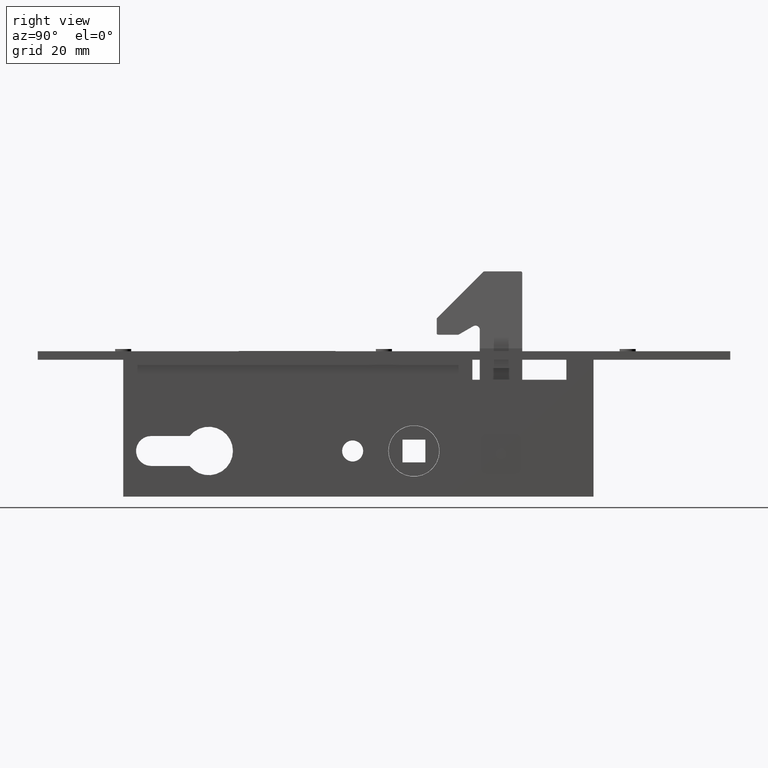
[diagram: clean part render]
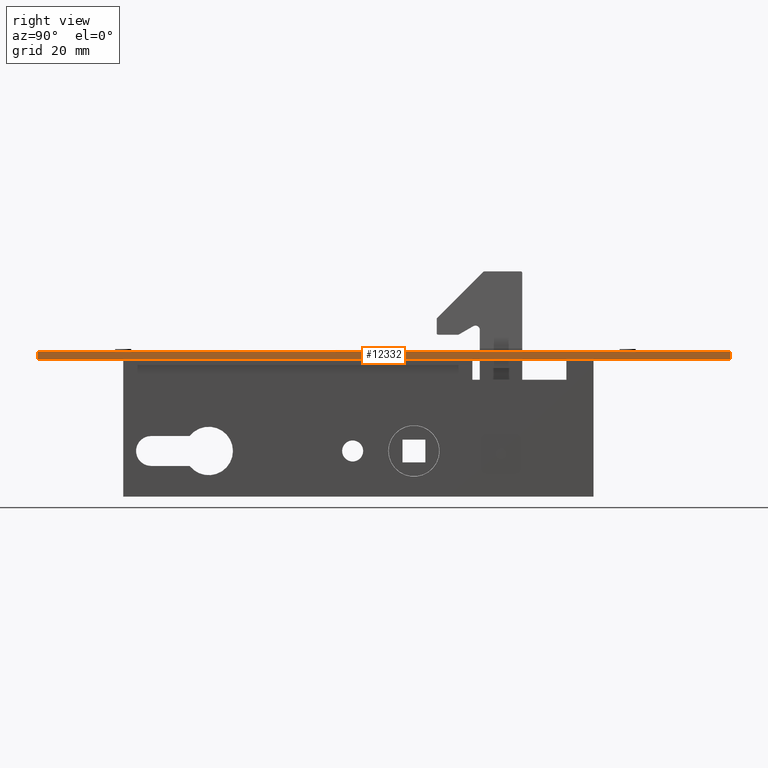
[diagram: same view with one face highlighted and labeled with its STEP entity id]
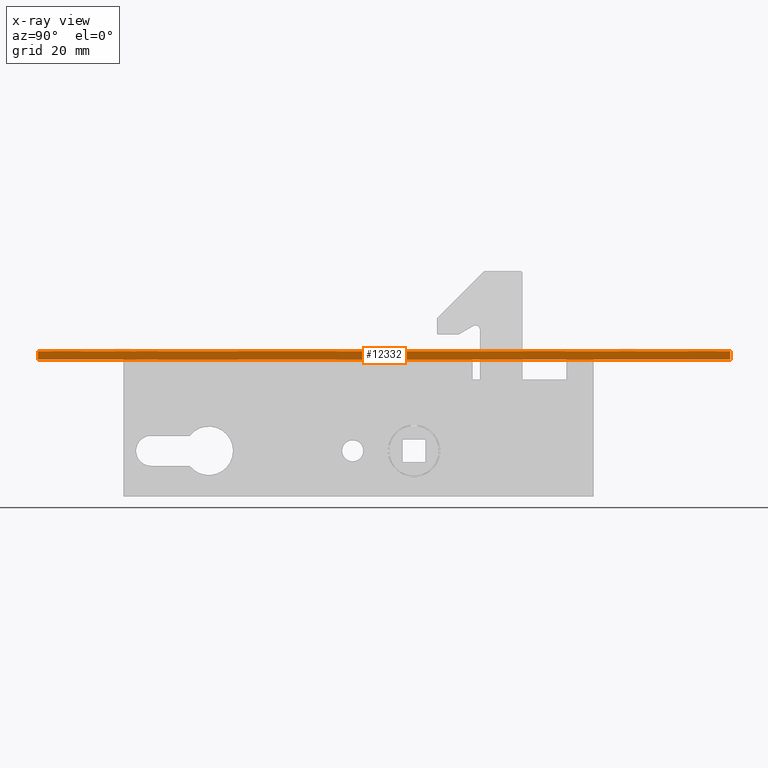
[diagram: x-ray of the same camera — body ghosted, the highlighted face saturated]
A machine part, right view. The second image highlights one B-rep face of the part: STEP entity #12332.
The next image is the same camera in x-ray: the body ghosted, the highlighted face saturated — about 0% of this face is hidden behind the body in this view.
In plain terms, the highlighted planar face has unit normal (-1, 0, 0).
Its self-contained STEP definition (entity closure, byte-faithful):
#108 = DIRECTION ( 'NONE',  ( -0.000000000000000000, -0.000000000000000000, -1.000000000000000000 ) ) ;
#277 = DIRECTION ( 'NONE',  ( 0.000000000000000000, 0.000000000000000000, 1.000000000000000000 ) ) ;
#1599 = CARTESIAN_POINT ( 'NONE',  ( 12.00000000000000000, 243.0000000000000000, 3.000000000000000000 ) ) ;
#1940 = AXIS2_PLACEMENT_3D ( 'NONE', #5256, #9222, #277 ) ;
#1979 = CARTESIAN_POINT ( 'NONE',  ( 12.00000000000000000, 0.000000000000000000, 3.000000000000000000 ) ) ;
#2483 = VERTEX_POINT ( 'NONE', #11412 ) ;
#2489 = VERTEX_POINT ( 'NONE', #7493 ) ;
#3015 = VECTOR ( 'NONE', #10470, 1000.000000000000000 ) ;
#3096 = VERTEX_POINT ( 'NONE', #9909 ) ;
#3361 = LINE ( 'NONE', #1979, #8284 ) ;
#3402 = FACE_OUTER_BOUND ( 'NONE', #12018, .T. ) ;
#4632 = LINE ( 'NONE', #12512, #6930 ) ;
#4957 = CARTESIAN_POINT ( 'NONE',  ( 12.00000000000000000, 0.000000000000000000, 3.000000000000000000 ) ) ;
#5256 = CARTESIAN_POINT ( 'NONE',  ( 12.00000000000000000, 0.000000000000000000, 3.000000000000000000 ) ) ;
#5635 = LINE ( 'NONE', #1599, #3015 ) ;
#5978 = DIRECTION ( 'NONE',  ( 0.000000000000000000, 1.000000000000000000, 0.000000000000000000 ) ) ;
#6764 = EDGE_CURVE ( 'NONE', #3096, #2483, #3361, .T. ) ;
#6930 = VECTOR ( 'NONE', #9564, 1000.000000000000000 ) ;
#7178 = ORIENTED_EDGE ( 'NONE', *, *, #6764, .F. ) ;
#7493 = CARTESIAN_POINT ( 'NONE',  ( 12.00000000000000000, 0.000000000000000000, 0.000000000000000000 ) ) ;
#7873 = CARTESIAN_POINT ( 'NONE',  ( 12.00000000000000000, 243.0000000000000000, 0.000000000000000000 ) ) ;
#7957 = ORIENTED_EDGE ( 'NONE', *, *, #10847, .T. ) ;
#8284 = VECTOR ( 'NONE', #5978, 1000.000000000000000 ) ;
#8374 = EDGE_CURVE ( 'NONE', #2483, #12690, #5635, .T. ) ;
#8726 = ORIENTED_EDGE ( 'NONE', *, *, #12092, .T. ) ;
#8954 = ORIENTED_EDGE ( 'NONE', *, *, #8374, .F. ) ;
#9222 = DIRECTION ( 'NONE',  ( -1.000000000000000000, 0.000000000000000000, 0.000000000000000000 ) ) ;
#9564 = DIRECTION ( 'NONE',  ( 0.000000000000000000, 1.000000000000000000, 0.000000000000000000 ) ) ;
#9909 = CARTESIAN_POINT ( 'NONE',  ( 12.00000000000000000, 0.000000000000000000, 3.000000000000000000 ) ) ;
#9924 = LINE ( 'NONE', #4957, #11932 ) ;
#10470 = DIRECTION ( 'NONE',  ( -0.000000000000000000, -0.000000000000000000, -1.000000000000000000 ) ) ;
#10847 = EDGE_CURVE ( 'NONE', #3096, #2489, #9924, .T. ) ;
#11412 = CARTESIAN_POINT ( 'NONE',  ( 12.00000000000000000, 243.0000000000000000, 3.000000000000000000 ) ) ;
#11932 = VECTOR ( 'NONE', #108, 1000.000000000000000 ) ;
#12017 = PLANE ( 'NONE',  #1940 ) ;
#12018 = EDGE_LOOP ( 'NONE', ( #8726, #8954, #7178, #7957 ) ) ;
#12092 = EDGE_CURVE ( 'NONE', #2489, #12690, #4632, .T. ) ;
#12332 = ADVANCED_FACE ( 'NONE', ( #3402 ), #12017, .F. ) ;
#12512 = CARTESIAN_POINT ( 'NONE',  ( 12.00000000000000000, 0.000000000000000000, 0.000000000000000000 ) ) ;
#12690 = VERTEX_POINT ( 'NONE', #7873 ) ;